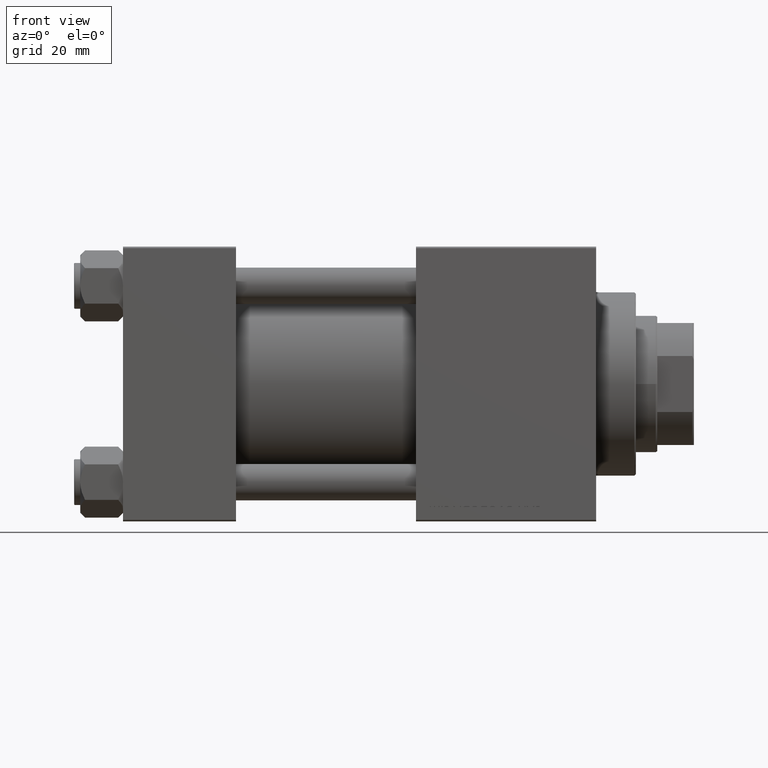
[diagram: clean part render]
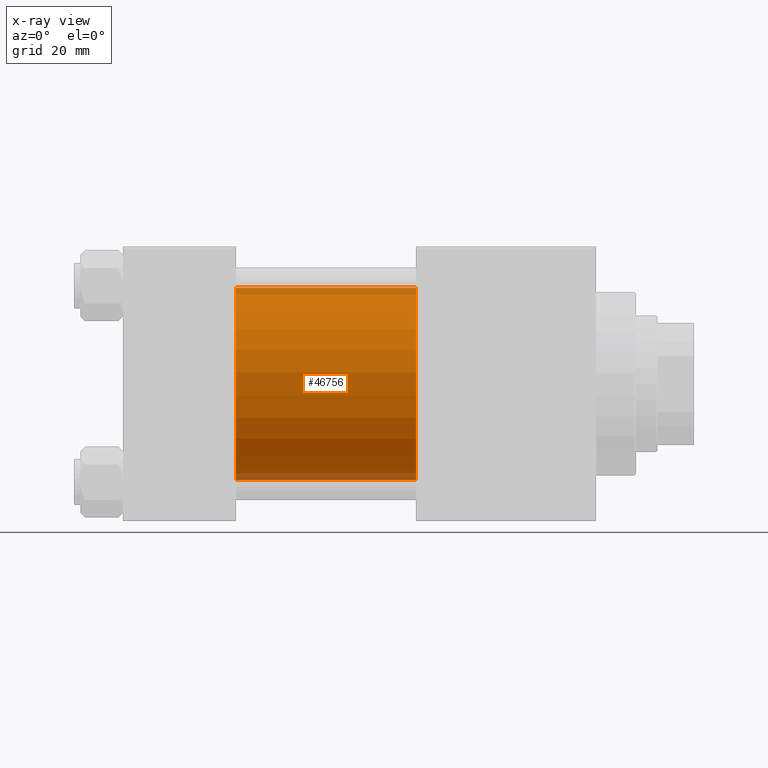
[diagram: x-ray — body ghosted, one internal face saturated and labeled with its STEP entity id]
A machine part, front view, then the same camera in x-ray: the body is ghosted and one INTERNAL B-rep face — a face not visible from any outside direction — is saturated and labeled: STEP entity #46756.
In plain terms, the highlighted cylindrical surface (partial cylindrical patch) has radius 31.5 mm, axis along (-1, -0, -0).
Its self-contained STEP definition (entity closure, byte-faithful):
#222 = DIRECTION ( 'NONE',  ( -1.000000000000000000, -0.000000000000000000, -0.000000000000000000 ) ) ;
#2667 = CARTESIAN_POINT ( 'NONE',  ( 37.00000000000000000, -2.602085213965210642E-15, 31.50000000000000000 ) ) ;
#4996 = EDGE_CURVE ( 'NONE', #34844, #36847, #5167, .T. ) ;
#5167 = CIRCLE ( 'NONE', #5957, 31.50000000000000000 ) ;
#5957 = AXIS2_PLACEMENT_3D ( 'NONE', #48483, #13627, #6753 ) ;
#5980 = DIRECTION ( 'NONE',  ( 1.000000000000000000, 0.000000000000000000, 0.000000000000000000 ) ) ;
#6753 = DIRECTION ( 'NONE',  ( 0.000000000000000000, 0.000000000000000000, -1.000000000000000000 ) ) ;
#6867 = VERTEX_POINT ( 'NONE', #42944 ) ;
#7473 = ORIENTED_EDGE ( 'NONE', *, *, #4996, .F. ) ;
#7679 = DIRECTION ( 'NONE',  ( 0.000000000000000000, 0.000000000000000000, 1.000000000000000000 ) ) ;
#9547 = CARTESIAN_POINT ( 'NONE',  ( 96.00000000000000000, -2.602085213965210642E-15, 0.000000000000000000 ) ) ;
#10492 = CYLINDRICAL_SURFACE ( 'NONE', #42392, 31.50000000000000000 ) ;
#10732 = ORIENTED_EDGE ( 'NONE', *, *, #34675, .T. ) ;
#12462 = EDGE_CURVE ( 'NONE', #6867, #34844, #42688, .T. ) ;
#13627 = DIRECTION ( 'NONE',  ( 1.000000000000000000, 0.000000000000000000, 0.000000000000000000 ) ) ;
#15190 = CARTESIAN_POINT ( 'NONE',  ( 96.00000000000000000, -2.602085213965210642E-15, 31.50000000000000000 ) ) ;
#16554 = ORIENTED_EDGE ( 'NONE', *, *, #28186, .T. ) ;
#21184 = VERTEX_POINT ( 'NONE', #40546 ) ;
#22159 = CARTESIAN_POINT ( 'NONE',  ( 37.00000000000000000, 1.255552203348951850E-15, -31.50000000000000000 ) ) ;
#24925 = DIRECTION ( 'NONE',  ( -1.000000000000000000, -0.000000000000000000, -0.000000000000000000 ) ) ;
#25241 = VECTOR ( 'NONE', #24925, 1000.000000000000000 ) ;
#28186 = EDGE_CURVE ( 'NONE', #21184, #36847, #39960, .T. ) ;
#28752 = CARTESIAN_POINT ( 'NONE',  ( 96.00000000000000000, 1.255552203348951850E-15, -31.50000000000000000 ) ) ;
#31982 = CIRCLE ( 'NONE', #47415, 31.50000000000000000 ) ;
#32945 = DIRECTION ( 'NONE',  ( 0.000000000000000000, 0.000000000000000000, -1.000000000000000000 ) ) ;
#33889 = CARTESIAN_POINT ( 'NONE',  ( 96.00000000000000000, -2.602085213965210642E-15, 0.000000000000000000 ) ) ;
#34675 = EDGE_CURVE ( 'NONE', #6867, #21184, #31982, .T. ) ;
#34844 = VERTEX_POINT ( 'NONE', #2667 ) ;
#36394 = VECTOR ( 'NONE', #222, 1000.000000000000000 ) ;
#36847 = VERTEX_POINT ( 'NONE', #22159 ) ;
#37458 = FACE_OUTER_BOUND ( 'NONE', #43104, .T. ) ;
#39960 = LINE ( 'NONE', #28752, #25241 ) ;
#40546 = CARTESIAN_POINT ( 'NONE',  ( 96.00000000000000000, 1.255552203348951850E-15, -31.50000000000000000 ) ) ;
#41498 = ORIENTED_EDGE ( 'NONE', *, *, #12462, .F. ) ;
#42392 = AXIS2_PLACEMENT_3D ( 'NONE', #33889, #46608, #7679 ) ;
#42688 = LINE ( 'NONE', #15190, #36394 ) ;
#42944 = CARTESIAN_POINT ( 'NONE',  ( 96.00000000000000000, -2.602085213965210642E-15, 31.50000000000000000 ) ) ;
#43104 = EDGE_LOOP ( 'NONE', ( #10732, #16554, #7473, #41498 ) ) ;
#46608 = DIRECTION ( 'NONE',  ( -1.000000000000000000, -0.000000000000000000, -0.000000000000000000 ) ) ;
#46756 = ADVANCED_FACE ( 'NONE', ( #37458 ), #10492, .F. ) ;
#47415 = AXIS2_PLACEMENT_3D ( 'NONE', #9547, #5980, #32945 ) ;
#48483 = CARTESIAN_POINT ( 'NONE',  ( 37.00000000000000000, -2.602085213965210642E-15, 0.000000000000000000 ) ) ;